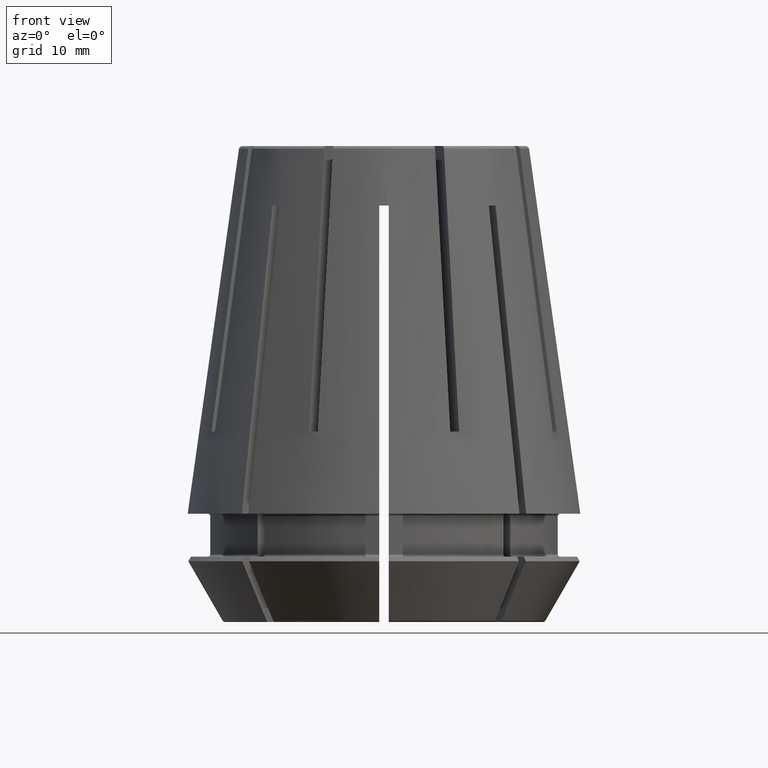
[diagram: clean part render]
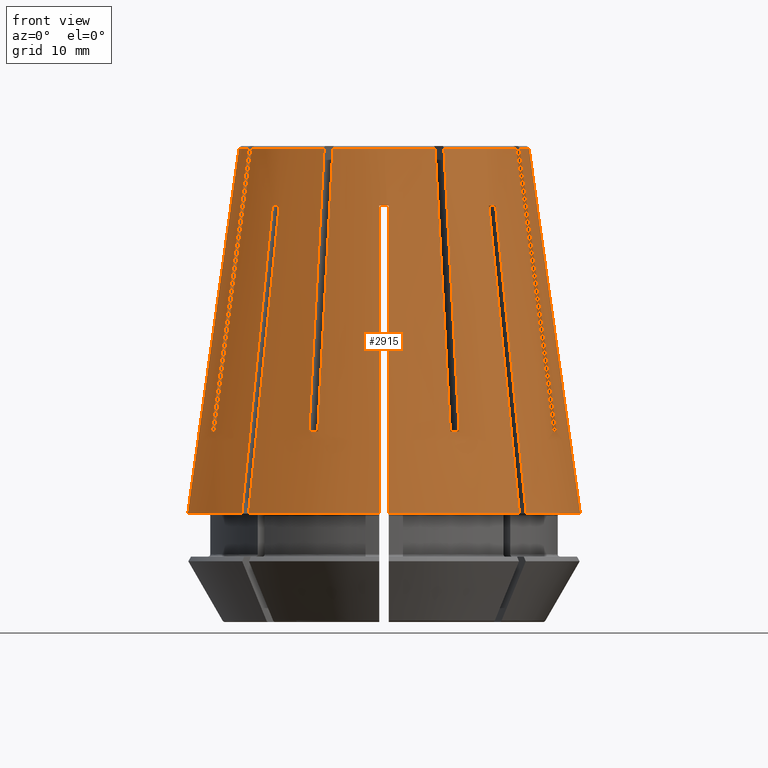
[diagram: same view with one face highlighted and labeled with its STEP entity id]
A machine part, front view. The second image highlights one B-rep face of the part: STEP entity #2915.
In plain terms, the highlighted conical surface has half-angle 8 deg.
Its self-contained STEP definition (entity closure, byte-faithful):
#44=CONICAL_SURFACE('',#3248,12.1572882076961,0.139626340159547);
#94=B_SPLINE_CURVE_WITH_KNOTS('',3,(#4080,#4081,#4082,#4083,#4084,#4085,
#4086),.UNSPECIFIED.,.F.,.F.,(4,3,4),(2.01967621565505E-7,0.0214077289743351,
0.0239754740322674),.UNSPECIFIED.);
#99=B_SPLINE_CURVE_WITH_KNOTS('',3,(#4116,#4117,#4118,#4119,#4120,#4121,
#4122),.UNSPECIFIED.,.F.,.F.,(4,3,4),(2.01967621565505E-7,0.0214077289743351,
0.0239754740322675),.UNSPECIFIED.);
#100=B_SPLINE_CURVE_WITH_KNOTS('',3,(#4142,#4143,#4144,#4145,#4146,#4147,
#4148),.UNSPECIFIED.,.F.,.F.,(4,3,4),(2.01967621565505E-7,0.0214077289743351,
0.0239754740322674),.UNSPECIFIED.);
#105=B_SPLINE_CURVE_WITH_KNOTS('',3,(#4178,#4179,#4180,#4181,#4182,#4183,
#4184),.UNSPECIFIED.,.F.,.F.,(4,3,4),(2.01967621565505E-7,0.0214077289743351,
0.0239754740322674),.UNSPECIFIED.);
#108=B_SPLINE_CURVE_WITH_KNOTS('',3,(#4209,#4210,#4211,#4212),
 .UNSPECIFIED.,.F.,.F.,(4,4),(2.01966812878522E-7,0.023975474031445),
 .UNSPECIFIED.);
#109=B_SPLINE_CURVE_WITH_KNOTS('',3,(#4223,#4224,#4225,#4226,#4227,#4228,
#4229),.UNSPECIFIED.,.F.,.F.,(4,3,4),(0.0202055224865555,0.0233448169697457,
0.046360247754037),.UNSPECIFIED.);
#118=B_SPLINE_CURVE_WITH_KNOTS('',3,(#4299,#4300,#4301,#4302,#4303,#4304,
#4305),.UNSPECIFIED.,.F.,.F.,(4,3,4),(0.0202055224865555,0.0233448169697457,
0.046360247754037),.UNSPECIFIED.);
#123=B_SPLINE_CURVE_WITH_KNOTS('',3,(#4350,#4351,#4352,#4353,#4354,#4355,
#4356),.UNSPECIFIED.,.F.,.F.,(4,3,4),(0.0202055224865555,0.0233448169697457,
0.046360247754037),.UNSPECIFIED.);
#126=B_SPLINE_CURVE_WITH_KNOTS('',3,(#4375,#4376,#4377,#4378),
 .UNSPECIFIED.,.F.,.F.,(4,4),(2.01966812881099E-7,0.0239754740314451),
 .UNSPECIFIED.);
#127=B_SPLINE_CURVE_WITH_KNOTS('',3,(#4389,#4390,#4391,#4392,#4393,#4394,
#4395),.UNSPECIFIED.,.F.,.F.,(4,3,4),(2.01967408645546E-7,0.0225777175800723,
0.0261549272367527),.UNSPECIFIED.);
#136=B_SPLINE_CURVE_WITH_KNOTS('',3,(#4465,#4466,#4467,#4468,#4469,#4470,
#4471),.UNSPECIFIED.,.F.,.F.,(4,3,4),(2.01967408645546E-7,0.0225777175800723,
0.0261549272367527),.UNSPECIFIED.);
#141=B_SPLINE_CURVE_WITH_KNOTS('',3,(#4516,#4517,#4518,#4519),
 .UNSPECIFIED.,.F.,.F.,(4,4),(2.01966664664593E-7,0.026154927235988),
 .UNSPECIFIED.);
#142=B_SPLINE_CURVE_WITH_KNOTS('',3,(#4521,#4522,#4523,#4524,#4525,#4526,
#4527),.UNSPECIFIED.,.F.,.F.,(4,3,4),(0.0202055224865555,0.0233448169697457,
0.046360247754037),.UNSPECIFIED.);
#151=B_SPLINE_CURVE_WITH_KNOTS('',3,(#4603,#4604,#4605,#4606,#4607,#4608,
#4609),.UNSPECIFIED.,.F.,.F.,(4,3,4),(0.0202055224865555,0.0233448169697457,
0.046360247754037),.UNSPECIFIED.);
#156=B_SPLINE_CURVE_WITH_KNOTS('',3,(#4657,#4658,#4659,#4660,#4661,#4662,
#4663),.UNSPECIFIED.,.F.,.F.,(4,3,4),(0.0202055224865555,0.0233448169697457,
0.046360247754037),.UNSPECIFIED.);
#173=B_SPLINE_CURVE_WITH_KNOTS('',3,(#4906,#4907,#4908,#4909),
 .UNSPECIFIED.,.F.,.F.,(4,4),(2.01966812881099E-7,0.023975474031445),
 .UNSPECIFIED.);
#176=B_SPLINE_CURVE_WITH_KNOTS('',3,(#4933,#4934,#4935,#4936),
 .UNSPECIFIED.,.F.,.F.,(4,4),(2.01966812878522E-7,0.023975474031445),
 .UNSPECIFIED.);
#178=B_SPLINE_CURVE_WITH_KNOTS('',3,(#4949,#4950,#4951,#4952,#4953,#4954,
#4955),.UNSPECIFIED.,.F.,.F.,(4,3,4),(2.01967621565505E-7,0.0214077289743351,
0.0239754740322674),.UNSPECIFIED.);
#179=B_SPLINE_CURVE_WITH_KNOTS('',3,(#4966,#4967,#4968,#4969,#4970,#4971,
#4972),.UNSPECIFIED.,.F.,.F.,(4,3,4),(2.01967621565505E-7,0.0214077289743351,
0.0239754740322674),.UNSPECIFIED.);
#183=B_SPLINE_CURVE_WITH_KNOTS('',3,(#5005,#5006,#5007,#5008,#5009,#5010,
#5011),.UNSPECIFIED.,.F.,.F.,(4,3,4),(2.01967621565505E-7,0.0214077289743351,
0.0239754740322675),.UNSPECIFIED.);
#184=B_SPLINE_CURVE_WITH_KNOTS('',3,(#5019,#5020,#5021,#5022,#5023,#5024,
#5025),.UNSPECIFIED.,.F.,.F.,(4,3,4),(2.01967408645546E-7,0.0225777175800723,
0.0261549272367527),.UNSPECIFIED.);
#190=B_SPLINE_CURVE_WITH_KNOTS('',3,(#5064,#5065,#5066,#5067),
 .UNSPECIFIED.,.F.,.F.,(4,4),(2.01966812881099E-7,0.0239754740314451),
 .UNSPECIFIED.);
#194=B_SPLINE_CURVE_WITH_KNOTS('',3,(#5101,#5102,#5103,#5104),
 .UNSPECIFIED.,.F.,.F.,(4,4),(2.01966664664481E-7,0.026154927235988),
 .UNSPECIFIED.);
#197=B_SPLINE_CURVE_WITH_KNOTS('',3,(#5123,#5124,#5125,#5126,#5127,#5128,
#5129),.UNSPECIFIED.,.F.,.F.,(4,3,4),(2.01967408645546E-7,0.0225777175800723,
0.0261549272367527),.UNSPECIFIED.);
#211=B_SPLINE_CURVE_WITH_KNOTS('',3,(#5351,#5352,#5353,#5354),
 .UNSPECIFIED.,.F.,.F.,(4,4),(2.01966812881099E-7,0.023975474031445),
 .UNSPECIFIED.);
#212=B_SPLINE_CURVE_WITH_KNOTS('',3,(#5355,#5356,#5357,#5358),
 .UNSPECIFIED.,.F.,.F.,(4,4),(2.01966812878522E-7,0.0239754740314451),
 .UNSPECIFIED.);
#213=B_SPLINE_CURVE_WITH_KNOTS('',3,(#5359,#5360,#5361,#5362,#5363,#5364,
#5365),.UNSPECIFIED.,.F.,.F.,(4,3,4),(2.01967621565505E-7,0.0214077289743351,
0.0239754740322674),.UNSPECIFIED.);
#214=B_SPLINE_CURVE_WITH_KNOTS('',3,(#5369,#5370,#5371,#5372),
 .UNSPECIFIED.,.F.,.F.,(4,4),(2.01966812878522E-7,0.023975474031445),
 .UNSPECIFIED.);
#215=B_SPLINE_CURVE_WITH_KNOTS('',3,(#5373,#5374,#5375,#5376),
 .UNSPECIFIED.,.F.,.F.,(4,4),(2.01966664664593E-7,0.026154927235988),
 .UNSPECIFIED.);
#216=B_SPLINE_CURVE_WITH_KNOTS('',3,(#5377,#5378,#5379,#5380,#5381,#5382,
#5383),.UNSPECIFIED.,.F.,.F.,(4,3,4),(0.0202055224865555,0.0233448169697457,
0.046360247754037),.UNSPECIFIED.);
#217=B_SPLINE_CURVE_WITH_KNOTS('',3,(#5384,#5385,#5386,#5387),
 .UNSPECIFIED.,.F.,.F.,(4,4),(2.01966664664593E-7,0.026154927235988),
 .UNSPECIFIED.);
#218=B_SPLINE_CURVE_WITH_KNOTS('',3,(#5388,#5389,#5390,#5391,#5392,#5393,
#5394),.UNSPECIFIED.,.F.,.F.,(4,3,4),(0.0202055224865555,0.0233448169697457,
0.046360247754037),.UNSPECIFIED.);
#1238=ORIENTED_EDGE('',*,*,#1470,.T.);
#1239=ORIENTED_EDGE('',*,*,#1780,.T.);
#1240=ORIENTED_EDGE('',*,*,#1807,.F.);
#1241=ORIENTED_EDGE('',*,*,#1889,.F.);
#1242=ORIENTED_EDGE('',*,*,#1488,.T.);
#1243=ORIENTED_EDGE('',*,*,#1494,.T.);
#1244=ORIENTED_EDGE('',*,*,#1816,.F.);
#1245=ORIENTED_EDGE('',*,*,#1890,.F.);
#1246=ORIENTED_EDGE('',*,*,#1765,.T.);
#1247=ORIENTED_EDGE('',*,*,#1544,.T.);
#1248=ORIENTED_EDGE('',*,*,#1824,.F.);
#1249=ORIENTED_EDGE('',*,*,#1731,.F.);
#1250=ORIENTED_EDGE('',*,*,#1747,.T.);
#1251=ORIENTED_EDGE('',*,*,#1740,.T.);
#1252=ORIENTED_EDGE('',*,*,#1729,.F.);
#1253=ORIENTED_EDGE('',*,*,#1467,.T.);
#1254=ORIENTED_EDGE('',*,*,#1456,.T.);
#1255=ORIENTED_EDGE('',*,*,#1458,.F.);
#1256=ORIENTED_EDGE('',*,*,#1813,.F.);
#1257=ORIENTED_EDGE('',*,*,#1485,.T.);
#1258=ORIENTED_EDGE('',*,*,#1474,.T.);
#1259=ORIENTED_EDGE('',*,*,#1476,.F.);
#1260=ORIENTED_EDGE('',*,*,#1821,.F.);
#1261=ORIENTED_EDGE('',*,*,#1763,.T.);
#1262=ORIENTED_EDGE('',*,*,#1757,.T.);
#1263=ORIENTED_EDGE('',*,*,#1751,.F.);
#1264=ORIENTED_EDGE('',*,*,#1827,.F.);
#1265=ORIENTED_EDGE('',*,*,#1745,.T.);
#1266=ORIENTED_EDGE('',*,*,#1750,.T.);
#1267=ORIENTED_EDGE('',*,*,#1891,.F.);
#1268=ORIENTED_EDGE('',*,*,#1892,.F.);
#1269=ORIENTED_EDGE('',*,*,#1893,.F.);
#1270=ORIENTED_EDGE('',*,*,#1865,.T.);
#1271=ORIENTED_EDGE('',*,*,#1793,.T.);
#1272=ORIENTED_EDGE('',*,*,#1804,.T.);
#1273=ORIENTED_EDGE('',*,*,#1894,.F.);
#1274=ORIENTED_EDGE('',*,*,#1886,.T.);
#1275=ORIENTED_EDGE('',*,*,#1589,.F.);
#1276=ORIENTED_EDGE('',*,*,#1616,.T.);
#1277=ORIENTED_EDGE('',*,*,#1614,.T.);
#1278=ORIENTED_EDGE('',*,*,#1655,.T.);
#1279=ORIENTED_EDGE('',*,*,#1549,.F.);
#1280=ORIENTED_EDGE('',*,*,#1547,.T.);
#1281=ORIENTED_EDGE('',*,*,#1572,.T.);
#1282=ORIENTED_EDGE('',*,*,#1677,.T.);
#1283=ORIENTED_EDGE('',*,*,#1499,.F.);
#1284=ORIENTED_EDGE('',*,*,#1497,.T.);
#1285=ORIENTED_EDGE('',*,*,#1522,.T.);
#1286=ORIENTED_EDGE('',*,*,#1702,.T.);
#1287=ORIENTED_EDGE('',*,*,#1767,.F.);
#1288=ORIENTED_EDGE('',*,*,#1783,.T.);
#1289=ORIENTED_EDGE('',*,*,#1801,.T.);
#1290=ORIENTED_EDGE('',*,*,#1864,.T.);
#1291=ORIENTED_EDGE('',*,*,#1632,.F.);
#1292=ORIENTED_EDGE('',*,*,#1619,.T.);
#1293=ORIENTED_EDGE('',*,*,#1895,.T.);
#1294=ORIENTED_EDGE('',*,*,#1668,.T.);
#1295=ORIENTED_EDGE('',*,*,#1588,.T.);
#1296=ORIENTED_EDGE('',*,*,#1575,.T.);
#1297=ORIENTED_EDGE('',*,*,#1896,.F.);
#1298=ORIENTED_EDGE('',*,*,#1689,.T.);
#1299=ORIENTED_EDGE('',*,*,#1538,.F.);
#1300=ORIENTED_EDGE('',*,*,#1525,.T.);
#1301=ORIENTED_EDGE('',*,*,#1897,.T.);
#1456=EDGE_CURVE('',#1913,#1912,#2215,.T.);
#1458=EDGE_CURVE('',#1914,#1912,#94,.T.);
#1467=EDGE_CURVE('',#1919,#1913,#99,.T.);
#1470=EDGE_CURVE('',#1925,#1924,#2217,.T.);
#1474=EDGE_CURVE('',#1929,#1928,#2219,.T.);
#1476=EDGE_CURVE('',#1930,#1928,#100,.T.);
#1485=EDGE_CURVE('',#1935,#1929,#105,.T.);
#1488=EDGE_CURVE('',#1941,#1940,#2221,.T.);
#1494=EDGE_CURVE('',#1940,#1945,#108,.T.);
#1497=EDGE_CURVE('',#1949,#1948,#2223,.T.);
#1499=EDGE_CURVE('',#1949,#1950,#109,.T.);
#1522=EDGE_CURVE('',#1948,#1971,#118,.T.);
#1525=EDGE_CURVE('',#1975,#1974,#2227,.T.);
#1538=EDGE_CURVE('',#1975,#1976,#123,.T.);
#1544=EDGE_CURVE('',#1987,#1992,#126,.T.);
#1547=EDGE_CURVE('',#1996,#1995,#2230,.T.);
#1549=EDGE_CURVE('',#1996,#1997,#127,.T.);
#1572=EDGE_CURVE('',#1995,#2018,#136,.T.);
#1575=EDGE_CURVE('',#2022,#2021,#2234,.T.);
#1588=EDGE_CURVE('',#2023,#2022,#141,.T.);
#1589=EDGE_CURVE('',#2034,#2035,#142,.T.);
#1614=EDGE_CURVE('',#2047,#2059,#151,.T.);
#1616=EDGE_CURVE('',#2034,#2047,#2239,.T.);
#1619=EDGE_CURVE('',#2063,#2062,#2241,.T.);
#1632=EDGE_CURVE('',#2063,#2064,#156,.T.);
#1655=EDGE_CURVE('',#2059,#1997,#2260,.T.);
#1668=EDGE_CURVE('',#2094,#2023,#2269,.T.);
#1677=EDGE_CURVE('',#2018,#1950,#2277,.T.);
#1689=EDGE_CURVE('',#2103,#1976,#2286,.T.);
#1702=EDGE_CURVE('',#1971,#2111,#2295,.T.);
#1729=EDGE_CURVE('',#1919,#2132,#2314,.T.);
#1731=EDGE_CURVE('',#2133,#2134,#173,.T.);
#1740=EDGE_CURVE('',#2137,#2132,#176,.T.);
#1745=EDGE_CURVE('',#2142,#2144,#178,.T.);
#1747=EDGE_CURVE('',#2133,#2137,#2316,.T.);
#1750=EDGE_CURVE('',#2144,#2146,#2318,.T.);
#1751=EDGE_CURVE('',#2147,#2148,#179,.T.);
#1757=EDGE_CURVE('',#2152,#2148,#2320,.T.);
#1763=EDGE_CURVE('',#2154,#2152,#183,.T.);
#1765=EDGE_CURVE('',#2158,#1987,#2322,.T.);
#1767=EDGE_CURVE('',#2159,#2111,#184,.T.);
#1780=EDGE_CURVE('',#1924,#2168,#190,.T.);
#1783=EDGE_CURVE('',#2159,#2170,#2324,.T.);
#1793=EDGE_CURVE('',#2171,#2178,#194,.T.);
#1801=EDGE_CURVE('',#2170,#2182,#197,.T.);
#1804=EDGE_CURVE('',#2178,#2184,#2326,.T.);
#1807=EDGE_CURVE('',#2185,#2168,#2329,.T.);
#1813=EDGE_CURVE('',#1935,#1914,#2333,.T.);
#1816=EDGE_CURVE('',#2188,#1945,#2336,.T.);
#1821=EDGE_CURVE('',#2154,#1930,#2339,.T.);
#1824=EDGE_CURVE('',#2134,#1992,#2342,.T.);
#1827=EDGE_CURVE('',#2142,#2147,#2345,.T.);
#1864=EDGE_CURVE('',#2182,#2064,#2368,.T.);
#1865=EDGE_CURVE('',#2204,#2171,#2369,.T.);
#1886=EDGE_CURVE('',#2210,#2035,#2378,.T.);
#1889=EDGE_CURVE('',#1941,#2185,#211,.T.);
#1890=EDGE_CURVE('',#2158,#2188,#212,.T.);
#1891=EDGE_CURVE('',#2212,#2146,#213,.T.);
#1892=EDGE_CURVE('',#2213,#2212,#2380,.T.);
#1893=EDGE_CURVE('',#1925,#2213,#214,.T.);
#1894=EDGE_CURVE('',#2210,#2184,#215,.T.);
#1895=EDGE_CURVE('',#2062,#2094,#216,.T.);
#1896=EDGE_CURVE('',#2103,#2021,#217,.T.);
#1897=EDGE_CURVE('',#1974,#2204,#218,.T.);
#1912=VERTEX_POINT('',#4075);
#1913=VERTEX_POINT('',#4077);
#1914=VERTEX_POINT('',#4087);
#1919=VERTEX_POINT('',#4107);
#1924=VERTEX_POINT('',#4128);
#1925=VERTEX_POINT('',#4130);
#1928=VERTEX_POINT('',#4137);
#1929=VERTEX_POINT('',#4139);
#1930=VERTEX_POINT('',#4149);
#1935=VERTEX_POINT('',#4169);
#1940=VERTEX_POINT('',#4190);
#1941=VERTEX_POINT('',#4192);
#1945=VERTEX_POINT('',#4208);
#1948=VERTEX_POINT('',#4218);
#1949=VERTEX_POINT('',#4220);
#1950=VERTEX_POINT('',#4230);
#1971=VERTEX_POINT('',#4298);
#1974=VERTEX_POINT('',#4311);
#1975=VERTEX_POINT('',#4313);
#1976=VERTEX_POINT('',#4317);
#1987=VERTEX_POINT('',#4359);
#1992=VERTEX_POINT('',#4374);
#1995=VERTEX_POINT('',#4384);
#1996=VERTEX_POINT('',#4386);
#1997=VERTEX_POINT('',#4396);
#2018=VERTEX_POINT('',#4464);
#2021=VERTEX_POINT('',#4477);
#2022=VERTEX_POINT('',#4479);
#2023=VERTEX_POINT('',#4483);
#2034=VERTEX_POINT('',#4528);
#2035=VERTEX_POINT('',#4529);
#2047=VERTEX_POINT('',#4567);
#2059=VERTEX_POINT('',#4602);
#2062=VERTEX_POINT('',#4618);
#2063=VERTEX_POINT('',#4620);
#2064=VERTEX_POINT('',#4624);
#2094=VERTEX_POINT('',#4755);
#2103=VERTEX_POINT('',#4800);
#2111=VERTEX_POINT('',#4827);
#2132=VERTEX_POINT('',#4900);
#2133=VERTEX_POINT('',#4910);
#2134=VERTEX_POINT('',#4911);
#2137=VERTEX_POINT('',#4923);
#2142=VERTEX_POINT('',#4943);
#2144=VERTEX_POINT('',#4948);
#2146=VERTEX_POINT('',#4963);
#2147=VERTEX_POINT('',#4973);
#2148=VERTEX_POINT('',#4974);
#2152=VERTEX_POINT('',#4988);
#2154=VERTEX_POINT('',#4996);
#2158=VERTEX_POINT('',#5016);
#2159=VERTEX_POINT('',#5026);
#2168=VERTEX_POINT('',#5063);
#2170=VERTEX_POINT('',#5072);
#2171=VERTEX_POINT('',#5076);
#2178=VERTEX_POINT('',#5100);
#2182=VERTEX_POINT('',#5122);
#2184=VERTEX_POINT('',#5134);
#2185=VERTEX_POINT('',#5141);
#2188=VERTEX_POINT('',#5161);
#2204=VERTEX_POINT('',#5288);
#2210=VERTEX_POINT('',#5346);
#2212=VERTEX_POINT('',#5366);
#2213=VERTEX_POINT('',#5368);
#2215=CIRCLE('',#2943,15.5302682405535);
#2217=CIRCLE('',#2948,15.5302682405535);
#2219=CIRCLE('',#2951,15.5302682405535);
#2221=CIRCLE('',#2956,15.5302682405535);
#2223=CIRCLE('',#2960,12.859992381208);
#2227=CIRCLE('',#2967,12.859992381208);
#2230=CIRCLE('',#2973,12.859992381208);
#2234=CIRCLE('',#2980,12.859992381208);
#2239=CIRCLE('',#2989,12.859992381208);
#2241=CIRCLE('',#2992,12.859992381208);
#2260=CIRCLE('',#3022,16.5);
#2269=CIRCLE('',#3036,16.5);
#2277=CIRCLE('',#3048,16.5);
#2286=CIRCLE('',#3062,16.5);
#2295=CIRCLE('',#3075,16.5);
#2314=CIRCLE('',#3103,12.1935826069737);
#2316=CIRCLE('',#3109,15.5302682405535);
#2318=CIRCLE('',#3112,15.5302682405535);
#2320=CIRCLE('',#3116,15.5302682405535);
#2322=CIRCLE('',#3120,15.5302682405535);
#2324=CIRCLE('',#3125,12.859992381208);
#2326=CIRCLE('',#3130,12.859992381208);
#2329=CIRCLE('',#3135,12.1935826069737);
#2333=CIRCLE('',#3141,12.1935826069737);
#2336=CIRCLE('',#3147,12.1935826069737);
#2339=CIRCLE('',#3152,12.1935826069737);
#2342=CIRCLE('',#3158,12.1935826069737);
#2345=CIRCLE('',#3163,12.1935826069737);
#2368=CIRCLE('',#3212,16.5);
#2369=CIRCLE('',#3215,16.5);
#2378=CIRCLE('',#3246,16.5);
#2380=CIRCLE('',#3249,12.1935826069737);
#2523=EDGE_LOOP('',(#1238,#1239,#1240,#1241,#1242,#1243,#1244,#1245,#1246,
#1247,#1248,#1249,#1250,#1251,#1252,#1253,#1254,#1255,#1256,#1257,#1258,
#1259,#1260,#1261,#1262,#1263,#1264,#1265,#1266,#1267,#1268,#1269));
#2524=EDGE_LOOP('',(#1270,#1271,#1272,#1273,#1274,#1275,#1276,#1277,#1278,
#1279,#1280,#1281,#1282,#1283,#1284,#1285,#1286,#1287,#1288,#1289,#1290,
#1291,#1292,#1293,#1294,#1295,#1296,#1297,#1298,#1299,#1300,#1301));
#2679=FACE_BOUND('',#2523,.T.);
#2680=FACE_BOUND('',#2524,.T.);
#2915=ADVANCED_FACE('',(#2679,#2680),#44,.T.);
#2943=AXIS2_PLACEMENT_3D('',#4076,#3270,#3271);
#2948=AXIS2_PLACEMENT_3D('',#4129,#3286,#3287);
#2951=AXIS2_PLACEMENT_3D('',#4138,#3294,#3295);
#2956=AXIS2_PLACEMENT_3D('',#4191,#3310,#3311);
#2960=AXIS2_PLACEMENT_3D('',#4219,#3322,#3323);
#2967=AXIS2_PLACEMENT_3D('',#4312,#3350,#3351);
#2973=AXIS2_PLACEMENT_3D('',#4385,#3373,#3374);
#2980=AXIS2_PLACEMENT_3D('',#4478,#3401,#3402);
#2989=AXIS2_PLACEMENT_3D('',#4612,#3440,#3441);
#2992=AXIS2_PLACEMENT_3D('',#4619,#3447,#3448);
#3022=AXIS2_PLACEMENT_3D('',#4718,#3515,#3516);
#3036=AXIS2_PLACEMENT_3D('',#4754,#3544,#3545);
#3048=AXIS2_PLACEMENT_3D('',#4769,#3569,#3570);
#3062=AXIS2_PLACEMENT_3D('',#4799,#3598,#3599);
#3075=AXIS2_PLACEMENT_3D('',#4828,#3627,#3628);
#3103=AXIS2_PLACEMENT_3D('',#4899,#3686,#3687);
#3109=AXIS2_PLACEMENT_3D('',#4958,#3707,#3708);
#3112=AXIS2_PLACEMENT_3D('',#4964,#3714,#3715);
#3116=AXIS2_PLACEMENT_3D('',#4987,#3725,#3726);
#3120=AXIS2_PLACEMENT_3D('',#5015,#3736,#3737);
#3125=AXIS2_PLACEMENT_3D('',#5073,#3755,#3756);
#3130=AXIS2_PLACEMENT_3D('',#5135,#3777,#3778);
#3135=AXIS2_PLACEMENT_3D('',#5140,#3787,#3788);
#3141=AXIS2_PLACEMENT_3D('',#5154,#3800,#3801);
#3147=AXIS2_PLACEMENT_3D('',#5160,#3812,#3813);
#3152=AXIS2_PLACEMENT_3D('',#5172,#3823,#3824);
#3158=AXIS2_PLACEMENT_3D('',#5178,#3835,#3836);
#3163=AXIS2_PLACEMENT_3D('',#5183,#3845,#3846);
#3212=AXIS2_PLACEMENT_3D('',#5284,#3949,#3950);
#3215=AXIS2_PLACEMENT_3D('',#5287,#3955,#3956);
#3246=AXIS2_PLACEMENT_3D('',#5345,#4026,#4027);
#3248=AXIS2_PLACEMENT_3D('',#5350,#4031,#4032);
#3249=AXIS2_PLACEMENT_3D('',#5367,#4033,#4034);
#3270=DIRECTION('',(0.,0.,-1.));
#3271=DIRECTION('',(-1.,0.,0.));
#3286=DIRECTION('',(0.,0.,-1.));
#3287=DIRECTION('',(-1.,0.,0.));
#3294=DIRECTION('',(0.,0.,-1.));
#3295=DIRECTION('',(-1.,0.,0.));
#3310=DIRECTION('',(0.,0.,-1.));
#3311=DIRECTION('',(-1.,0.,0.));
#3322=DIRECTION('',(0.,0.,1.));
#3323=DIRECTION('',(1.,0.,0.));
#3350=DIRECTION('',(0.,0.,1.));
#3351=DIRECTION('',(1.,0.,0.));
#3373=DIRECTION('',(0.,0.,1.));
#3374=DIRECTION('',(1.,0.,0.));
#3401=DIRECTION('',(0.,0.,1.));
#3402=DIRECTION('',(1.,0.,0.));
#3440=DIRECTION('',(0.,0.,1.));
#3441=DIRECTION('',(1.,0.,0.));
#3447=DIRECTION('',(0.,0.,1.));
#3448=DIRECTION('',(1.,0.,0.));
#3515=DIRECTION('',(0.,0.,1.));
#3516=DIRECTION('',(1.,0.,0.));
#3544=DIRECTION('',(0.,0.,1.));
#3545=DIRECTION('',(1.,0.,0.));
#3569=DIRECTION('',(0.,0.,1.));
#3570=DIRECTION('',(1.,0.,0.));
#3598=DIRECTION('',(0.,0.,1.));
#3599=DIRECTION('',(1.,0.,0.));
#3627=DIRECTION('',(0.,0.,1.));
#3628=DIRECTION('',(1.,0.,0.));
#3686=DIRECTION('',(0.,0.,1.));
#3687=DIRECTION('',(1.,0.,0.));
#3707=DIRECTION('',(0.,0.,-1.));
#3708=DIRECTION('',(-1.,0.,0.));
#3714=DIRECTION('',(0.,0.,-1.));
#3715=DIRECTION('',(-1.,0.,0.));
#3725=DIRECTION('',(0.,0.,-1.));
#3726=DIRECTION('',(-1.,0.,0.));
#3736=DIRECTION('',(0.,0.,-1.));
#3737=DIRECTION('',(-1.,0.,0.));
#3755=DIRECTION('',(0.,0.,1.));
#3756=DIRECTION('',(1.,0.,0.));
#3777=DIRECTION('',(0.,0.,1.));
#3778=DIRECTION('',(1.,0.,0.));
#3787=DIRECTION('',(0.,0.,1.));
#3788=DIRECTION('',(1.,0.,0.));
#3800=DIRECTION('',(0.,0.,1.));
#3801=DIRECTION('',(1.,0.,0.));
#3812=DIRECTION('',(0.,0.,1.));
#3813=DIRECTION('',(1.,0.,0.));
#3823=DIRECTION('',(0.,0.,1.));
#3824=DIRECTION('',(1.,0.,0.));
#3835=DIRECTION('',(0.,0.,1.));
#3836=DIRECTION('',(1.,0.,0.));
#3845=DIRECTION('',(0.,0.,1.));
#3846=DIRECTION('',(1.,0.,0.));
#3949=DIRECTION('',(0.,0.,1.));
#3950=DIRECTION('',(1.,0.,0.));
#3955=DIRECTION('',(0.,0.,1.));
#3956=DIRECTION('',(1.,0.,0.));
#4026=DIRECTION('',(0.,0.,1.));
#4027=DIRECTION('',(1.,0.,0.));
#4031=DIRECTION('',(0.,0.,-1.));
#4032=DIRECTION('',(-1.,0.,0.));
#4033=DIRECTION('',(0.,0.,1.));
#4034=DIRECTION('',(1.,0.,0.));
#4075=CARTESIAN_POINT('',(14.1902636824385,-6.31075655103337,6.9));
#4076=CARTESIAN_POINT('',(0.,0.,6.9));
#4077=CARTESIAN_POINT('',(14.4964104283306,-5.57165292502434,6.9));
#4080=CARTESIAN_POINT('',(11.106264979212,-5.0333224618159,30.641751930288));
#4081=CARTESIAN_POINT('',(12.0242702301904,-5.41357268710089,23.5754288437403));
#4082=CARTESIAN_POINT('',(12.9421615834132,-5.79377573439077,16.509088421508));
#4083=CARTESIAN_POINT('',(13.8599951565236,-6.17395484837444,9.44273920769953));
#4084=CARTESIAN_POINT('',(13.9700855289791,-6.21955577373219,8.59515960324897));
#4085=CARTESIAN_POINT('',(14.0801750177276,-6.26515633304654,7.74757986432143));
#4086=CARTESIAN_POINT('',(14.1902636824385,-6.31075655103337,6.9));
#4087=CARTESIAN_POINT('',(11.1062649792123,-5.03332246181523,30.641751930288));
#4107=CARTESIAN_POINT('',(11.4124117251041,-4.29421883580687,30.641751930288));
#4116=CARTESIAN_POINT('',(11.4124117251041,-4.29421883580687,30.641751930288));
#4117=CARTESIAN_POINT('',(12.3304169760825,-4.67446906109186,23.5754288437403));
#4118=CARTESIAN_POINT('',(13.2483083293053,-5.05467210838174,16.509088421508));
#4119=CARTESIAN_POINT('',(14.1661419024157,-5.43485122236541,9.44273920769953));
#4120=CARTESIAN_POINT('',(14.2762322748711,-5.48045214772316,8.59515960324897));
#4121=CARTESIAN_POINT('',(14.3863217636196,-5.52605270703751,7.74757986432143));
#4122=CARTESIAN_POINT('',(14.4964104283306,-5.57165292502434,6.9));
#4128=CARTESIAN_POINT('',(-14.1902636824385,6.31075655103337,6.9));
#4129=CARTESIAN_POINT('',(0.,0.,6.9));
#4130=CARTESIAN_POINT('',(-14.4964104283306,5.57165292502434,6.9));
#4137=CARTESIAN_POINT('',(5.57165292502435,-14.4964104283306,6.9));
#4138=CARTESIAN_POINT('',(0.,0.,6.9));
#4139=CARTESIAN_POINT('',(6.31075655103338,-14.1902636824385,6.9));
#4142=CARTESIAN_POINT('',(4.29421883580688,-11.4124117251041,30.641751930288));
#4143=CARTESIAN_POINT('',(4.67446906109186,-12.3304169760825,23.5754288437403));
#4144=CARTESIAN_POINT('',(5.05467210838175,-13.2483083293053,16.509088421508));
#4145=CARTESIAN_POINT('',(5.43485122236542,-14.1661419024157,9.44273920769953));
#4146=CARTESIAN_POINT('',(5.48045214772317,-14.2762322748711,8.59515960324897));
#4147=CARTESIAN_POINT('',(5.52605270703752,-14.3863217636196,7.74757986432143));
#4148=CARTESIAN_POINT('',(5.57165292502435,-14.4964104283306,6.9));
#4149=CARTESIAN_POINT('',(4.29421883580646,-11.4124117251042,30.641751930288));
#4169=CARTESIAN_POINT('',(5.0333224618159,-11.106264979212,30.641751930288));
#4178=CARTESIAN_POINT('',(5.0333224618159,-11.106264979212,30.641751930288));
#4179=CARTESIAN_POINT('',(5.41357268710089,-12.0242702301904,23.5754288437403));
#4180=CARTESIAN_POINT('',(5.79377573439078,-12.9421615834132,16.509088421508));
#4181=CARTESIAN_POINT('',(6.17395484837445,-13.8599951565236,9.44273920769953));
#4182=CARTESIAN_POINT('',(6.2195557737322,-13.970085528979,8.59515960324897));
#4183=CARTESIAN_POINT('',(6.26515633304655,-14.0801750177276,7.74757986432143));
#4184=CARTESIAN_POINT('',(6.31075655103338,-14.1902636824385,6.9));
#4190=CARTESIAN_POINT('',(-5.57165292502435,14.4964104283306,6.9));
#4191=CARTESIAN_POINT('',(0.,0.,6.9));
#4192=CARTESIAN_POINT('',(-6.31075655103338,14.1902636824385,6.9));
#4208=CARTESIAN_POINT('',(-4.29421883580764,11.4124117251038,30.641751930288));
#4209=CARTESIAN_POINT('',(-5.57165292502435,14.4964104283306,6.9));
#4210=CARTESIAN_POINT('',(-5.14587949047366,13.4685024281401,14.8139312446351));
#4211=CARTESIAN_POINT('',(-4.72007851595518,12.440527940586,22.7278523732097));
#4212=CARTESIAN_POINT('',(-4.29421883580688,11.4124117251041,30.641751930288));
#4218=CARTESIAN_POINT('',(0.4,-12.8537700323574,25.9));
#4219=CARTESIAN_POINT('',(0.,0.,25.9));
#4220=CARTESIAN_POINT('',(-0.4,-12.8537700323574,25.9));
#4223=CARTESIAN_POINT('',(-0.399999999999998,-12.8537700323574,25.9));
#4224=CARTESIAN_POINT('',(-0.399999999999998,-12.9994742820282,24.8637620232766));
#4225=CARTESIAN_POINT('',(-0.4,-13.1451761838456,23.8275237164219));
#4226=CARTESIAN_POINT('',(-0.4,-13.2908759620741,22.7912851109839));
#4227=CARTESIAN_POINT('',(-0.4,-14.3590596507436,15.1942030196));
#4228=CARTESIAN_POINT('',(-0.399999999999997,-15.427133378476,7.59710546706873));
#4229=CARTESIAN_POINT('',(-0.399999999999997,-16.4951508025844,-1.12673817449607E-16));
#4230=CARTESIAN_POINT('',(-0.4,-16.4951508025844,0.));
#4298=CARTESIAN_POINT('',(0.4,-16.4951508025844,0.));
#4299=CARTESIAN_POINT('',(0.400000000000002,-12.8537700323574,25.9));
#4300=CARTESIAN_POINT('',(0.400000000000002,-12.9994742820282,24.8637620232766));
#4301=CARTESIAN_POINT('',(0.4,-13.1451761838456,23.8275237164219));
#4302=CARTESIAN_POINT('',(0.4,-13.2908759620741,22.7912851109839));
#4303=CARTESIAN_POINT('',(0.4,-14.3590596507436,15.1942030196));
#4304=CARTESIAN_POINT('',(0.400000000000003,-15.427133378476,7.59710546706873));
#4305=CARTESIAN_POINT('',(0.400000000000003,-16.4951508025844,-1.32934432022247E-16));
#4311=CARTESIAN_POINT('',(-0.4,12.8537700323574,25.9));
#4312=CARTESIAN_POINT('',(0.,0.,25.9));
#4313=CARTESIAN_POINT('',(0.4,12.8537700323574,25.9));
#4317=CARTESIAN_POINT('',(0.399999999999995,16.4951508025844,0.));
#4350=CARTESIAN_POINT('',(0.399999999999998,12.8537700323574,25.9));
#4351=CARTESIAN_POINT('',(0.399999999999998,12.9994742820282,24.8637620232766));
#4352=CARTESIAN_POINT('',(0.4,13.1451761838456,23.8275237164219));
#4353=CARTESIAN_POINT('',(0.4,13.2908759620741,22.7912851109839));
#4354=CARTESIAN_POINT('',(0.4,14.3590596507436,15.1942030196));
#4355=CARTESIAN_POINT('',(0.399999999999997,15.427133378476,7.59710546706873));
#4356=CARTESIAN_POINT('',(0.399999999999997,16.4951508025844,3.64904937771274E-16));
#4359=CARTESIAN_POINT('',(6.31075655103337,14.1902636824385,6.9));
#4374=CARTESIAN_POINT('',(5.03332246181551,11.1062649792122,30.641751930288));
#4375=CARTESIAN_POINT('',(6.31075655103337,14.1902636824385,6.9));
#4376=CARTESIAN_POINT('',(5.88498311648268,13.1623556822481,14.8139312446351));
#4377=CARTESIAN_POINT('',(5.45918214196421,12.1343811946939,22.7278523732097));
#4378=CARTESIAN_POINT('',(5.0333224618159,11.106264979212,30.641751930288));
#4384=CARTESIAN_POINT('',(-8.80614524121772,-9.37183066616696,25.9));
#4385=CARTESIAN_POINT('',(0.,0.,25.9));
#4386=CARTESIAN_POINT('',(-9.37183066616695,-8.80614524121772,25.9));
#4389=CARTESIAN_POINT('',(-9.37183066616695,-8.80614524121773,25.9));
#4390=CARTESIAN_POINT('',(-10.1128018441912,-9.54711641924199,18.4474722999498));
#4391=CARTESIAN_POINT('',(-10.8536903784581,-10.2880049535089,10.9949281659434));
#4392=CARTESIAN_POINT('',(-11.594536985142,-11.0288515601928,3.54237569688478));
#4393=CARTESIAN_POINT('',(-11.7119176430124,-11.1462322180632,2.36158401377609));
#4394=CARTESIAN_POINT('',(-11.8292971824135,-11.2636117574642,1.18079210829593));
#4395=CARTESIAN_POINT('',(-11.9466757016767,-11.3809902767275,2.16905320952062E-16));
#4396=CARTESIAN_POINT('',(-11.9466757016767,-11.3809902767275,0.));
#4464=CARTESIAN_POINT('',(-11.3809902767275,-11.9466757016768,0.));
#4465=CARTESIAN_POINT('',(-8.80614524121771,-9.37183066616696,25.9));
#4466=CARTESIAN_POINT('',(-9.54711641924197,-10.1128018441912,18.4474722999498));
#4467=CARTESIAN_POINT('',(-10.2880049535089,-10.8536903784581,10.9949281659434));
#4468=CARTESIAN_POINT('',(-11.0288515601928,-11.594536985142,3.54237569688478));
#4469=CARTESIAN_POINT('',(-11.1462322180632,-11.7119176430124,2.36158401377609));
#4470=CARTESIAN_POINT('',(-11.2636117574642,-11.8292971824135,1.18079210829593));
#4471=CARTESIAN_POINT('',(-11.3809902767275,-11.9466757016768,1.44920798917697E-15));
#4477=CARTESIAN_POINT('',(8.80614524121771,9.37183066616696,25.9));
#4478=CARTESIAN_POINT('',(0.,0.,25.9));
#4479=CARTESIAN_POINT('',(9.37183066616695,8.80614524121772,25.9));
#4483=CARTESIAN_POINT('',(11.9466757016767,11.3809902767275,0.));
#4516=CARTESIAN_POINT('',(11.9466757016767,11.3809902767275,8.42057348997707E-16));
#4517=CARTESIAN_POINT('',(11.0884640735296,10.5227786485804,8.63334726084728));
#4518=CARTESIAN_POINT('',(10.2302022392926,9.66451681434339,17.2666845413449));
#4519=CARTESIAN_POINT('',(9.37183066616695,8.80614524121773,25.9));
#4521=CARTESIAN_POINT('',(-12.8537700323574,0.4,25.9));
#4522=CARTESIAN_POINT('',(-12.9994742820282,0.4,24.8637620232766));
#4523=CARTESIAN_POINT('',(-13.1451761838456,0.4,23.8275237164219));
#4524=CARTESIAN_POINT('',(-13.2908759620741,0.4,22.7912851109839));
#4525=CARTESIAN_POINT('',(-14.3590596507436,0.4,15.1942030196));
#4526=CARTESIAN_POINT('',(-15.427133378476,0.4,7.59710546706872));
#4527=CARTESIAN_POINT('',(-16.4951508025844,0.4,-3.47145982650402E-15));
#4528=CARTESIAN_POINT('',(-12.8537700323574,0.4,25.9));
#4529=CARTESIAN_POINT('',(-16.4951508025844,0.4,0.));
#4567=CARTESIAN_POINT('',(-12.8537700323574,-0.4,25.9));
#4602=CARTESIAN_POINT('',(-16.4951508025844,-0.4,0.));
#4603=CARTESIAN_POINT('',(-12.8537700323574,-0.4,25.9));
#4604=CARTESIAN_POINT('',(-12.9994742820282,-0.4,24.8637620232766));
#4605=CARTESIAN_POINT('',(-13.1451761838456,-0.4,23.8275237164219));
#4606=CARTESIAN_POINT('',(-13.2908759620741,-0.4,22.7912851109839));
#4607=CARTESIAN_POINT('',(-14.3590596507436,-0.4,15.1942030196));
#4608=CARTESIAN_POINT('',(-15.427133378476,-0.4,7.59710546706872));
#4609=CARTESIAN_POINT('',(-16.4951508025844,-0.4,-3.47145982650402E-15));
#4612=CARTESIAN_POINT('',(0.,0.,25.9));
#4618=CARTESIAN_POINT('',(12.8537700323574,0.4,25.9));
#4619=CARTESIAN_POINT('',(0.,0.,25.9));
#4620=CARTESIAN_POINT('',(12.8537700323574,-0.4,25.9));
#4624=CARTESIAN_POINT('',(16.4951508025844,-0.4,0.));
#4657=CARTESIAN_POINT('',(12.8537700323574,-0.4,25.9));
#4658=CARTESIAN_POINT('',(12.9994742820282,-0.4,24.8637620232766));
#4659=CARTESIAN_POINT('',(13.1451761838456,-0.4,23.8275237164219));
#4660=CARTESIAN_POINT('',(13.2908759620741,-0.4,22.7912851109839));
#4661=CARTESIAN_POINT('',(14.3590596507436,-0.4,15.1942030196));
#4662=CARTESIAN_POINT('',(15.427133378476,-0.4,7.59710546706872));
#4663=CARTESIAN_POINT('',(16.4951508025844,-0.4,-3.47145982650402E-15));
#4718=CARTESIAN_POINT('',(0.,0.,0.));
#4754=CARTESIAN_POINT('',(0.,0.,0.));
#4755=CARTESIAN_POINT('',(16.4951508025844,0.4,0.));
#4769=CARTESIAN_POINT('',(0.,0.,0.));
#4799=CARTESIAN_POINT('',(0.,0.,0.));
#4800=CARTESIAN_POINT('',(11.3809902767275,11.9466757016768,0.));
#4827=CARTESIAN_POINT('',(11.3809902767275,-11.9466757016768,0.));
#4828=CARTESIAN_POINT('',(0.,0.,0.));
#4899=CARTESIAN_POINT('',(0.,0.,30.641751930288));
#4900=CARTESIAN_POINT('',(11.4124117251038,4.29421883580764,30.641751930288));
#4906=CARTESIAN_POINT('',(14.1902636824385,6.31075655103338,6.9));
#4907=CARTESIAN_POINT('',(13.1623556822481,5.88498311648269,14.8139312446351));
#4908=CARTESIAN_POINT('',(12.1343811946939,5.45918214196421,22.7278523732097));
#4909=CARTESIAN_POINT('',(11.106264979212,5.0333224618159,30.641751930288));
#4910=CARTESIAN_POINT('',(14.1902636824385,6.31075655103337,6.9));
#4911=CARTESIAN_POINT('',(11.106264979212,5.0333224618159,30.641751930288));
#4923=CARTESIAN_POINT('',(14.4964104283306,5.57165292502434,6.9));
#4933=CARTESIAN_POINT('',(14.4964104283306,5.57165292502435,6.9));
#4934=CARTESIAN_POINT('',(13.4685024281401,5.14587949047366,14.8139312446351));
#4935=CARTESIAN_POINT('',(12.440527940586,4.72007851595518,22.7278523732097));
#4936=CARTESIAN_POINT('',(11.4124117251041,4.29421883580688,30.641751930288));
#4943=CARTESIAN_POINT('',(-11.106264979212,-5.0333224618159,30.641751930288));
#4948=CARTESIAN_POINT('',(-14.1902636824385,-6.31075655103337,6.9));
#4949=CARTESIAN_POINT('',(-11.106264979212,-5.0333224618159,30.641751930288));
#4950=CARTESIAN_POINT('',(-12.0242702301904,-5.41357268710089,23.5754288437403));
#4951=CARTESIAN_POINT('',(-12.9421615834132,-5.79377573439078,16.509088421508));
#4952=CARTESIAN_POINT('',(-13.8599951565236,-6.17395484837445,9.44273920769953));
#4953=CARTESIAN_POINT('',(-13.970085528979,-6.2195557737322,8.59515960324897));
#4954=CARTESIAN_POINT('',(-14.0801750177276,-6.26515633304655,7.74757986432143));
#4955=CARTESIAN_POINT('',(-14.1902636824385,-6.31075655103338,6.9));
#4958=CARTESIAN_POINT('',(0.,0.,6.9));
#4963=CARTESIAN_POINT('',(-14.4964104283306,-5.57165292502434,6.9));
#4964=CARTESIAN_POINT('',(0.,0.,6.9));
#4966=CARTESIAN_POINT('',(-5.0333224618159,-11.106264979212,30.641751930288));
#4967=CARTESIAN_POINT('',(-5.41357268710089,-12.0242702301904,23.5754288437403));
#4968=CARTESIAN_POINT('',(-5.79377573439077,-12.9421615834132,16.509088421508));
#4969=CARTESIAN_POINT('',(-6.17395484837444,-13.8599951565236,9.44273920769953));
#4970=CARTESIAN_POINT('',(-6.21955577373219,-13.9700855289791,8.59515960324897));
#4971=CARTESIAN_POINT('',(-6.26515633304654,-14.0801750177276,7.74757986432143));
#4972=CARTESIAN_POINT('',(-6.31075655103337,-14.1902636824385,6.9));
#4973=CARTESIAN_POINT('',(-5.03332246181523,-11.1062649792123,30.641751930288));
#4974=CARTESIAN_POINT('',(-6.31075655103337,-14.1902636824385,6.9));
#4987=CARTESIAN_POINT('',(0.,0.,6.9));
#4988=CARTESIAN_POINT('',(-5.57165292502434,-14.4964104283306,6.9));
#4996=CARTESIAN_POINT('',(-4.29421883580687,-11.4124117251041,30.641751930288));
#5005=CARTESIAN_POINT('',(-4.29421883580687,-11.4124117251041,30.641751930288));
#5006=CARTESIAN_POINT('',(-4.67446906109186,-12.3304169760825,23.5754288437403));
#5007=CARTESIAN_POINT('',(-5.05467210838174,-13.2483083293053,16.509088421508));
#5008=CARTESIAN_POINT('',(-5.43485122236541,-14.1661419024157,9.44273920769953));
#5009=CARTESIAN_POINT('',(-5.48045214772316,-14.2762322748711,8.59515960324897));
#5010=CARTESIAN_POINT('',(-5.52605270703751,-14.3863217636196,7.74757986432143));
#5011=CARTESIAN_POINT('',(-5.57165292502434,-14.4964104283306,6.9));
#5015=CARTESIAN_POINT('',(0.,0.,6.9));
#5016=CARTESIAN_POINT('',(5.57165292502434,14.4964104283306,6.9));
#5019=CARTESIAN_POINT('',(8.80614524121772,-9.37183066616696,25.9));
#5020=CARTESIAN_POINT('',(9.54711641924198,-10.1128018441912,18.4474722999498));
#5021=CARTESIAN_POINT('',(10.2880049535089,-10.8536903784581,10.9949281659434));
#5022=CARTESIAN_POINT('',(11.0288515601928,-11.594536985142,3.54237569688478));
#5023=CARTESIAN_POINT('',(11.1462322180632,-11.7119176430124,2.36158401377609));
#5024=CARTESIAN_POINT('',(11.2636117574642,-11.8292971824135,1.18079210829593));
#5025=CARTESIAN_POINT('',(11.3809902767275,-11.9466757016768,-2.2995921864177E-15));
#5026=CARTESIAN_POINT('',(8.80614524121772,-9.37183066616696,25.9));
#5063=CARTESIAN_POINT('',(-11.1062649792122,5.03332246181551,30.641751930288));
#5064=CARTESIAN_POINT('',(-14.1902636824385,6.31075655103337,6.9));
#5065=CARTESIAN_POINT('',(-13.1623556822481,5.88498311648268,14.8139312446351));
#5066=CARTESIAN_POINT('',(-12.1343811946939,5.45918214196421,22.7278523732097));
#5067=CARTESIAN_POINT('',(-11.106264979212,5.0333224618159,30.641751930288));
#5072=CARTESIAN_POINT('',(9.37183066616696,-8.80614524121772,25.9));
#5073=CARTESIAN_POINT('',(0.,0.,25.9));
#5076=CARTESIAN_POINT('',(-11.3809902767275,11.9466757016767,0.));
#5100=CARTESIAN_POINT('',(-8.80614524121772,9.37183066616695,25.9));
#5101=CARTESIAN_POINT('',(-11.3809902767275,11.9466757016768,8.05827974700486E-16));
#5102=CARTESIAN_POINT('',(-10.5227786485804,11.0884640735296,8.63334726084728));
#5103=CARTESIAN_POINT('',(-9.66451681434338,10.2302022392926,17.2666845413449));
#5104=CARTESIAN_POINT('',(-8.80614524121772,9.37183066616696,25.9));
#5122=CARTESIAN_POINT('',(11.9466757016767,-11.3809902767275,0.));
#5123=CARTESIAN_POINT('',(9.37183066616696,-8.80614524121772,25.9));
#5124=CARTESIAN_POINT('',(10.1128018441912,-9.54711641924198,18.4474722999498));
#5125=CARTESIAN_POINT('',(10.8536903784581,-10.2880049535089,10.9949281659434));
#5126=CARTESIAN_POINT('',(11.594536985142,-11.0288515601928,3.54237569688478));
#5127=CARTESIAN_POINT('',(11.7119176430124,-11.1462322180632,2.36158401377609));
#5128=CARTESIAN_POINT('',(11.8292971824135,-11.2636117574642,1.18079210829593));
#5129=CARTESIAN_POINT('',(11.9466757016768,-11.3809902767275,1.48410993689699E-15));
#5134=CARTESIAN_POINT('',(-9.37183066616696,8.80614524121771,25.9));
#5135=CARTESIAN_POINT('',(0.,0.,25.9));
#5140=CARTESIAN_POINT('',(0.,0.,30.641751930288));
#5141=CARTESIAN_POINT('',(-5.03332246181621,11.1062649792119,30.641751930288));
#5154=CARTESIAN_POINT('',(0.,0.,30.641751930288));
#5160=CARTESIAN_POINT('',(0.,0.,30.641751930288));
#5161=CARTESIAN_POINT('',(4.29421883580657,11.4124117251042,30.641751930288));
#5172=CARTESIAN_POINT('',(0.,0.,30.641751930288));
#5178=CARTESIAN_POINT('',(0.,0.,30.641751930288));
#5183=CARTESIAN_POINT('',(0.,0.,30.641751930288));
#5284=CARTESIAN_POINT('',(0.,0.,0.));
#5287=CARTESIAN_POINT('',(0.,0.,0.));
#5288=CARTESIAN_POINT('',(-0.4,16.4951508025844,0.));
#5345=CARTESIAN_POINT('',(0.,0.,0.));
#5346=CARTESIAN_POINT('',(-11.9466757016768,11.3809902767275,0.));
#5350=CARTESIAN_POINT('',(0.,0.,30.9));
#5351=CARTESIAN_POINT('',(-6.31075655103338,14.1902636824385,6.9));
#5352=CARTESIAN_POINT('',(-5.88498311648269,13.1623556822481,14.8139312446351));
#5353=CARTESIAN_POINT('',(-5.45918214196421,12.1343811946939,22.7278523732097));
#5354=CARTESIAN_POINT('',(-5.03332246181591,11.106264979212,30.641751930288));
#5355=CARTESIAN_POINT('',(5.57165292502434,14.4964104283306,6.9));
#5356=CARTESIAN_POINT('',(5.14587949047365,13.4685024281402,14.8139312446351));
#5357=CARTESIAN_POINT('',(4.72007851595518,12.440527940586,22.7278523732097));
#5358=CARTESIAN_POINT('',(4.29421883580687,11.4124117251041,30.641751930288));
#5359=CARTESIAN_POINT('',(-11.4124117251041,-4.29421883580688,30.641751930288));
#5360=CARTESIAN_POINT('',(-12.3304169760825,-4.67446906109186,23.5754288437403));
#5361=CARTESIAN_POINT('',(-13.2483083293053,-5.05467210838175,16.509088421508));
#5362=CARTESIAN_POINT('',(-14.1661419024157,-5.43485122236542,9.44273920769953));
#5363=CARTESIAN_POINT('',(-14.2762322748711,-5.48045214772317,8.59515960324897));
#5364=CARTESIAN_POINT('',(-14.3863217636196,-5.52605270703752,7.74757986432143));
#5365=CARTESIAN_POINT('',(-14.4964104283306,-5.57165292502435,6.9));
#5366=CARTESIAN_POINT('',(-11.4124117251041,-4.29421883580688,30.641751930288));
#5367=CARTESIAN_POINT('',(0.,0.,30.641751930288));
#5368=CARTESIAN_POINT('',(-11.4124117251042,4.29421883580657,30.641751930288));
#5369=CARTESIAN_POINT('',(-14.4964104283306,5.57165292502434,6.9));
#5370=CARTESIAN_POINT('',(-13.4685024281402,5.14587949047365,14.8139312446351));
#5371=CARTESIAN_POINT('',(-12.440527940586,4.72007851595518,22.7278523732097));
#5372=CARTESIAN_POINT('',(-11.4124117251041,4.29421883580687,30.641751930288));
#5373=CARTESIAN_POINT('',(-11.9466757016768,11.3809902767275,7.95659805601239E-16));
#5374=CARTESIAN_POINT('',(-11.0884640735296,10.5227786485804,8.63334726084728));
#5375=CARTESIAN_POINT('',(-10.2302022392926,9.66451681434338,17.2666845413449));
#5376=CARTESIAN_POINT('',(-9.37183066616696,8.80614524121772,25.9));
#5377=CARTESIAN_POINT('',(12.8537700323574,0.4,25.9));
#5378=CARTESIAN_POINT('',(12.9994742820282,0.4,24.8637620232766));
#5379=CARTESIAN_POINT('',(13.1451761838456,0.4,23.8275237164219));
#5380=CARTESIAN_POINT('',(13.2908759620741,0.4,22.7912851109839));
#5381=CARTESIAN_POINT('',(14.3590596507436,0.4,15.1942030196));
#5382=CARTESIAN_POINT('',(15.427133378476,0.4,7.59710546706872));
#5383=CARTESIAN_POINT('',(16.4951508025844,0.4,-3.47145982650402E-15));
#5384=CARTESIAN_POINT('',(11.3809902767275,11.9466757016768,7.6086203387496E-16));
#5385=CARTESIAN_POINT('',(10.5227786485804,11.0884640735296,8.63334726084728));
#5386=CARTESIAN_POINT('',(9.66451681434338,10.2302022392926,17.2666845413449));
#5387=CARTESIAN_POINT('',(8.80614524121771,9.37183066616696,25.9));
#5388=CARTESIAN_POINT('',(-0.400000000000002,12.8537700323574,25.9));
#5389=CARTESIAN_POINT('',(-0.400000000000002,12.9994742820282,24.8637620232766));
#5390=CARTESIAN_POINT('',(-0.4,13.1451761838456,23.8275237164219));
#5391=CARTESIAN_POINT('',(-0.4,13.2908759620741,22.7912851109839));
#5392=CARTESIAN_POINT('',(-0.4,14.3590596507436,15.1942030196));
#5393=CARTESIAN_POINT('',(-0.400000000000003,15.427133378476,7.59710546706873));
#5394=CARTESIAN_POINT('',(-0.400000000000003,16.4951508025844,-1.16260718962675E-16));